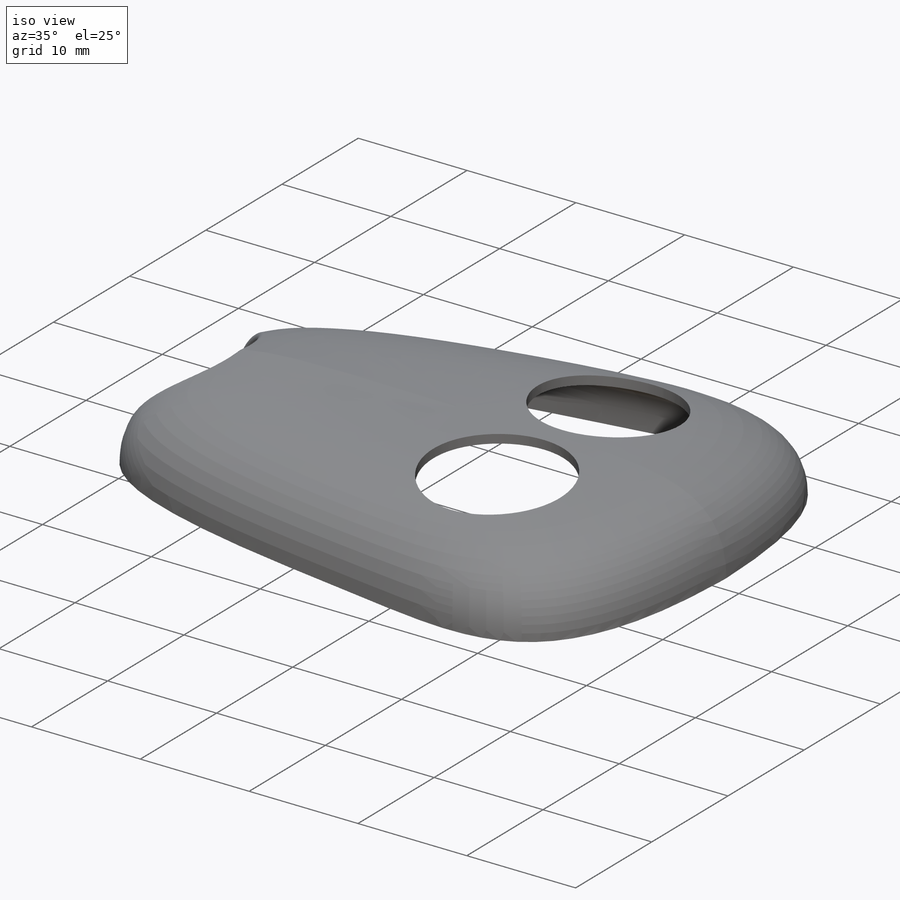
[diagram: iso view]
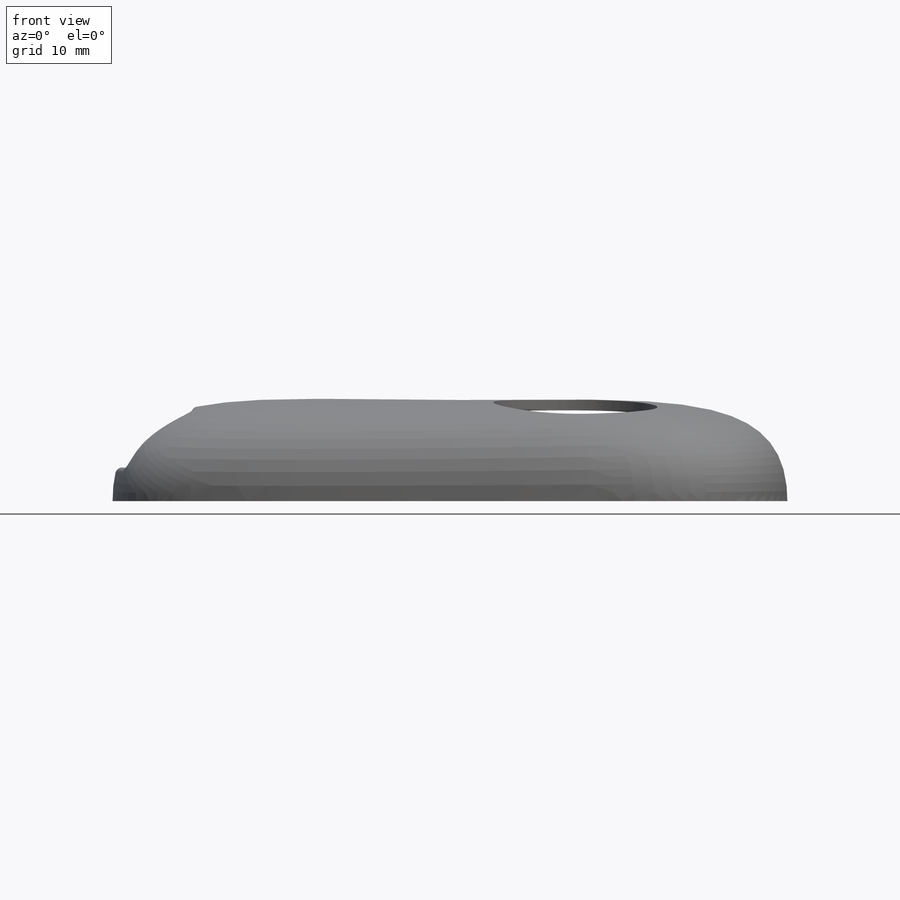
[diagram: front view]
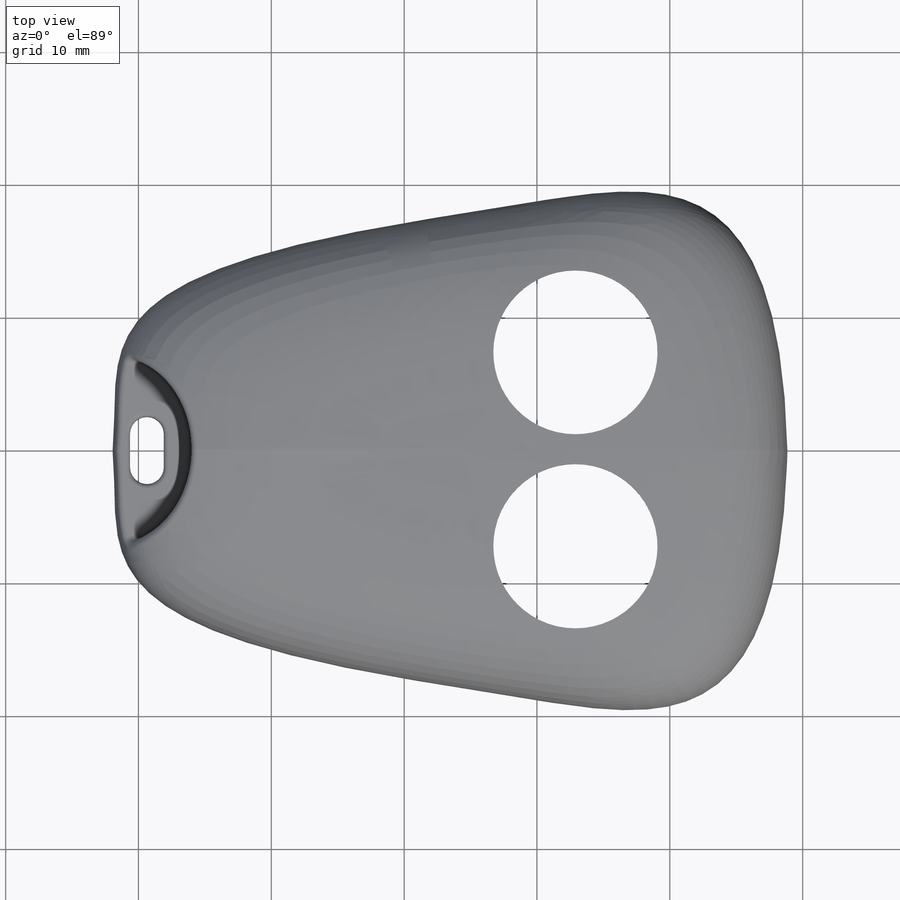
[diagram: top view]
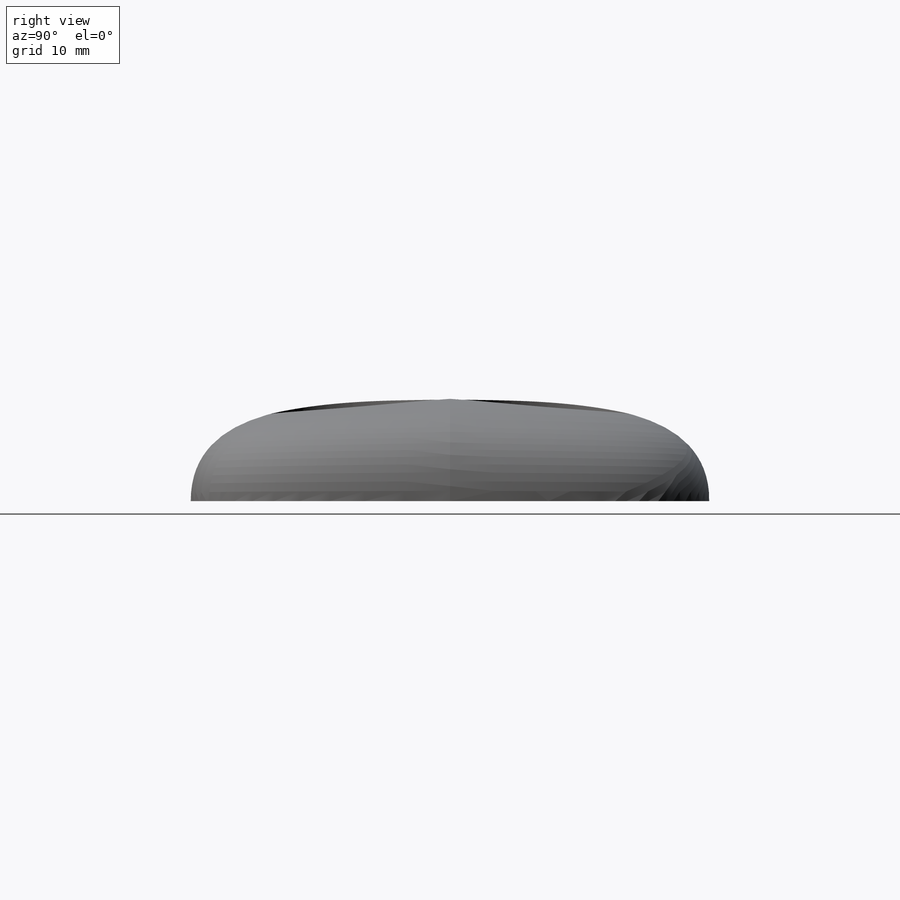
[diagram: right view]
SOLIDWORKS PART (.sldprt)
format: sldprt  version: not decoded by parser v0  size: 819,200 bytes
history: native  units: mm
features: sketch x5, cut_extrude x3, fillet x3, plane x2, material x1, shell x1 (+12 scaffold rows collapsed)
feature tree (27):
  scaffold x12  (default folders/planes/origin — collapsed)
  material  "Material <not specified>"
  sketch  "Sketch1"  dims[D1=50.8mm]
  plane  "Plane1"  Offset=7.62mm
  sketch  "Sketch2"
  sketch  "Sketch4"  dims[D1=~10.882594mm]
  cut_extrude  "Cut-Extrude2"  Depth=5.08mm
  sketch  "Sketch5"  dims[D1=2.54mm]
  cut_extrude  "Cut-Extrude3"  [1 undecoded]
  fillet  "Fillet1"  Radius=0.508mm
  fillet  "Fillet2"  Radius=0.508mm
  fillet  "Fillet3"  Radius=0.381mm
  shell  "Shell1"  Thickness=0.8mm
  plane  "Plane2"  Offset=2.54mm
  sketch  "Sketch3"  dims[D1=~31.89955mm]
  cut_extrude  "Cut-Extrude1"  [1 undecoded]
decode coverage: 9 of 12 modeling features carry decoded parameters
note: ~ marks probable driven/reference dimensions
note: 2 parameter values undecoded
note: suppression state not decoded; provenance and decode notes live in map.json
